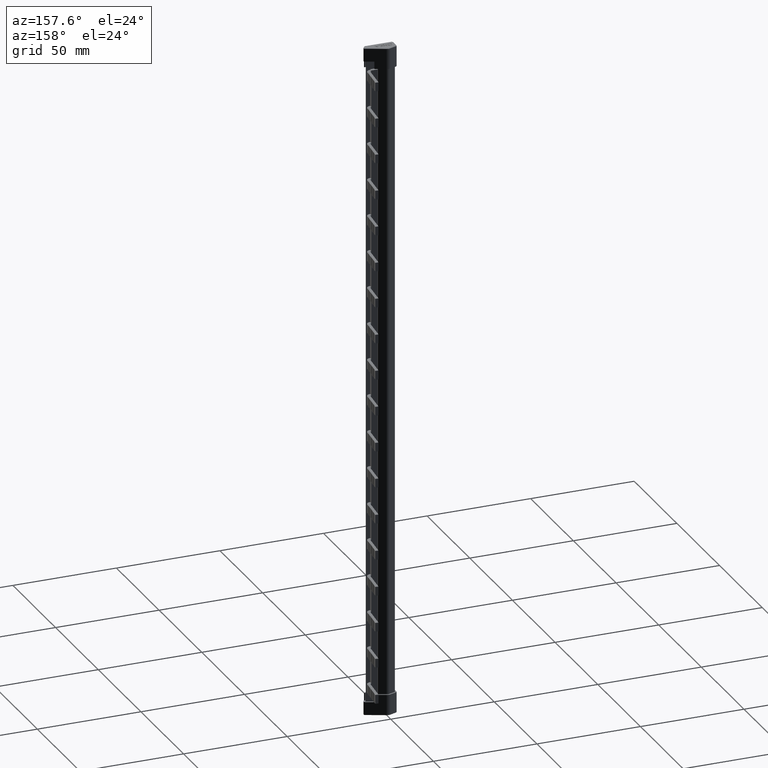
[diagram: clean part render]
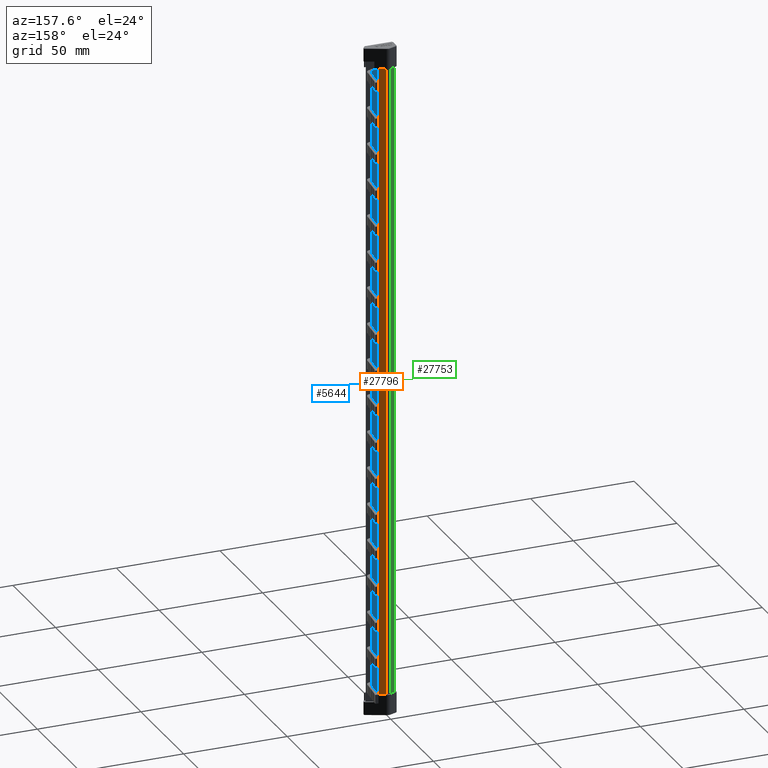
[diagram: same view with three faces highlighted in distinct colors, each labeled with its STEP entity id]
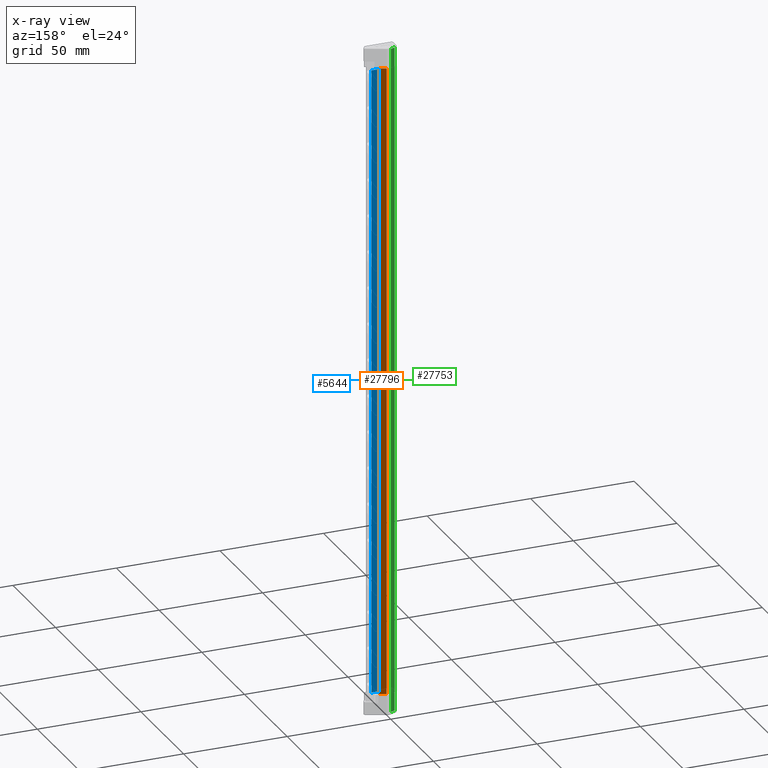
[diagram: x-ray of the same camera — body ghosted, the three highlighted faces saturated]
A machine part, auxiliary view with three faces highlighted in distinct colors.
The next image is the same camera in x-ray (body ghosted, the three faces saturated) — at least one of them is partly hidden behind the body in this view.
Their STEP definitions:

[orange] entity #27796 — the highlighted planar face has unit normal (-0.4021, -0.9156, 0).
#3870 = EDGE_CURVE ( 'NONE', #17492, #17494, #10264, .T. ) ;
#3875 = EDGE_CURVE ( 'NONE', #17480, #17516, #10255, .T. ) ;
#6617 = VECTOR ( 'NONE', #15357, 1000.000000000000000 ) ;
#6662 = VECTOR ( 'NONE', #15415, 1000.000000000000000 ) ;
#6684 = VECTOR ( 'NONE', #15501, 1000.000000000000000 ) ;
#6685 = VECTOR ( 'NONE', #15468, 1000.000000000000000 ) ;
#6749 = AXIS2_PLACEMENT_3D ( 'NONE', #19731, #19726, #19732 ) ;
#9329 = CARTESIAN_POINT ( 'NONE',  ( 4.041246672141031800, 5.040290789016191700, 209.9000000000000100 ) ) ;
#9334 = CARTESIAN_POINT ( 'NONE',  ( 4.023631280490517900, 5.048082172487888800, -104.9999999999999600 ) ) ;
#9338 = CARTESIAN_POINT ( 'NONE',  ( 4.041246672138928600, 5.040290789017118000, -95.90000000000002000 ) ) ;
#9349 = CARTESIAN_POINT ( 'NONE',  ( 4.041246672134450400, 5.040290789019118200, -104.9999999999999400 ) ) ;
#9356 = CARTESIAN_POINT ( 'NONE',  ( 7.198979361395242200, 3.653583530320347900, 209.9000000000000100 ) ) ;
#9394 = CARTESIAN_POINT ( 'NONE',  ( 7.198978880136806400, 3.653583741663305700, -95.89999999999999100 ) ) ;
#9399 = CARTESIAN_POINT ( 'NONE',  ( 4.023631280490503700, 5.048082172487894100, 219.0000000000000000 ) ) ;
#9401 = CARTESIAN_POINT ( 'NONE',  ( 4.041246672138783000, 5.040290789017197100, 219.0000000000000000 ) ) ;
#10225 = DIRECTION ( 'NONE',  ( 0.9156028725539414600, -0.4020837969515445600, 0.0000000000000000000 ) ) ;
#10227 = CARTESIAN_POINT ( 'NONE',  ( 7.198979567648849300, 3.653583439744773700, 209.9000000000000100 ) ) ;
#10231 = CARTESIAN_POINT ( 'NONE',  ( 4.041246672138768800, 5.040290789017190900, -95.89999999999999100 ) ) ;
#10255 = LINE ( 'NONE', #10231, #28781 ) ;
#10264 = LINE ( 'NONE', #10227, #28780 ) ;
#10265 = DIRECTION ( 'NONE',  ( -0.9156028725539414600, 0.4020837969515445600, 0.0000000000000000000 ) ) ;
#11906 = ORIENTED_EDGE ( 'NONE', *, *, #3875, .F. ) ;
#11909 = ORIENTED_EDGE ( 'NONE', *, *, #3870, .F. ) ;
#11910 = ORIENTED_EDGE ( 'NONE', *, *, #27717, .F. ) ;
#11917 = ORIENTED_EDGE ( 'NONE', *, *, #27691, .F. ) ;
#11924 = ORIENTED_EDGE ( 'NONE', *, *, #27701, .F. ) ;
#11926 = ORIENTED_EDGE ( 'NONE', *, *, #27595, .F. ) ;
#11936 = ORIENTED_EDGE ( 'NONE', *, *, #27698, .F. ) ;
#12021 = ORIENTED_EDGE ( 'NONE', *, *, #27666, .F. ) ;
#15026 = CARTESIAN_POINT ( 'NONE',  ( 4.029530657293334700, 5.045547550304820400, -104.9999999999999400 ) ) ;
#15028 = CARTESIAN_POINT ( 'NONE',  ( 4.041246672134450400, 5.040290789019118200, -104.9999999999999400 ) ) ;
#15035 = CARTESIAN_POINT ( 'NONE',  ( 4.023631280490517900, 5.048082172487888800, -104.9999999999999600 ) ) ;
#15038 = CARTESIAN_POINT ( 'NONE',  ( 4.035395738251794200, 5.042934822567399800, -104.9999999999999400 ) ) ;
#15350 = LINE ( 'NONE', #15386, #6617 ) ;
#15357 = DIRECTION ( 'NONE',  ( 3.755450426763440500E-019, 8.551702964775421900E-019, 1.000000000000000000 ) ) ;
#15386 = CARTESIAN_POINT ( 'NONE',  ( 4.041246672134435300, 5.040290789019083600, 219.0000000000000000 ) ) ;
#15403 = CARTESIAN_POINT ( 'NONE',  ( 4.041246672138774100, 5.040290789017178400, 219.0000000000000000 ) ) ;
#15415 = DIRECTION ( 'NONE',  ( 3.755450426763440500E-019, 8.551702964775421900E-019, 1.000000000000000000 ) ) ;
#15416 = LINE ( 'NONE', #15403, #6662 ) ;
#15450 = CARTESIAN_POINT ( 'NONE',  ( 4.041246672138783000, 5.040290789017197100, 219.0000000000000000 ) ) ;
#15452 = CARTESIAN_POINT ( 'NONE',  ( 4.035395738254680800, 5.042934822566112800, 219.0000000000000000 ) ) ;
#15468 = DIRECTION ( 'NONE',  ( -3.755450426763440500E-019, -8.551702964775421900E-019, -1.000000000000000000 ) ) ;
#15476 = CARTESIAN_POINT ( 'NONE',  ( 4.023631280490503700, 5.048082172487894100, 219.0000000000000000 ) ) ;
#15479 = CARTESIAN_POINT ( 'NONE',  ( 4.023610795916428500, 5.048035522336186400, 219.0000000000000000 ) ) ;
#15482 = LINE ( 'NONE', #15479, #6685 ) ;
#15483 = CARTESIAN_POINT ( 'NONE',  ( 4.029530657294781500, 5.045547550304184400, 219.0000000000000000 ) ) ;
#15501 = DIRECTION ( 'NONE',  ( 3.755450426763440500E-019, 8.551702964775421900E-019, 1.000000000000000000 ) ) ;
#15516 = CARTESIAN_POINT ( 'NONE',  ( 7.198979017639225700, 3.653583681279625000, 219.0000000000000000 ) ) ;
#15524 = LINE ( 'NONE', #15516, #6684 ) ;
#17428 = EDGE_LOOP ( 'NONE', ( #11909, #11910, #11906, #12021, #11926, #11936, #11924, #11917 ) ) ;
#17476 = VERTEX_POINT ( 'NONE', #9349 ) ;
#17480 = VERTEX_POINT ( 'NONE', #9338 ) ;
#17492 = VERTEX_POINT ( 'NONE', #9356 ) ;
#17494 = VERTEX_POINT ( 'NONE', #9329 ) ;
#17496 = VERTEX_POINT ( 'NONE', #9334 ) ;
#17503 = VERTEX_POINT ( 'NONE', #9401 ) ;
#17516 = VERTEX_POINT ( 'NONE', #9394 ) ;
#17519 = VERTEX_POINT ( 'NONE', #9399 ) ;
#19690 = PLANE ( 'NONE',  #6749 ) ;
#19707 = FACE_OUTER_BOUND ( 'NONE', #17428, .T. ) ;
#19726 = DIRECTION ( 'NONE',  ( -0.4020837969515297400, -0.9156028725539479000, 9.339969566632776300E-019 ) ) ;
#19731 = CARTESIAN_POINT ( 'NONE',  ( 7.198977367610305900, 3.653584405884049900, 219.0000000000000000 ) ) ;
#19732 = DIRECTION ( 'NONE',  ( 0.9156028725539479000, -0.4020837969515297400, 0.0000000000000000000 ) ) ;
#27290 = B_SPLINE_CURVE_WITH_KNOTS ( 'NONE', 3,
 ( #15035, #15026, #15038, #15028 ),
 .UNSPECIFIED., .F., .F.,
 ( 4, 4 ),
 ( 0.0000000000000000000, 1.000000000000000000 ),
 .UNSPECIFIED. ) ;
#27297 = B_SPLINE_CURVE_WITH_KNOTS ( 'NONE', 3,
 ( #15450, #15452, #15483, #15476 ),
 .UNSPECIFIED., .F., .F.,
 ( 4, 4 ),
 ( 0.0000000000000000000, 1.000000000000000000 ),
 .UNSPECIFIED. ) ;
#27595 = EDGE_CURVE ( 'NONE', #17496, #17476, #27290, .T. ) ;
#27666 = EDGE_CURVE ( 'NONE', #17476, #17480, #15350, .T. ) ;
#27691 = EDGE_CURVE ( 'NONE', #17494, #17503, #15416, .T. ) ;
#27698 = EDGE_CURVE ( 'NONE', #17519, #17496, #15482, .T. ) ;
#27701 = EDGE_CURVE ( 'NONE', #17503, #17519, #27297, .T. ) ;
#27717 = EDGE_CURVE ( 'NONE', #17516, #17492, #15524, .T. ) ;
#27796 = ADVANCED_FACE ( 'NONE', ( #19707 ), #19690, .F. ) ;
#28780 = VECTOR ( 'NONE', #10265, 1000.000000000000000 ) ;
#28781 = VECTOR ( 'NONE', #10225, 1000.000000000000100 ) ;

[blue] entity #5644 — the highlighted planar face has unit normal (-0, -1, 0).
#459 = CARTESIAN_POINT ( 'NONE',  ( 0.5999928904455442700, 2.600000585347644700, 207.9000000000000100 ) ) ;
#460 = DIRECTION ( 'NONE',  ( 0.0000000000000000000, -2.593268936129210100E-023, -1.000000000000000000 ) ) ;
#494 = FACE_OUTER_BOUND ( 'NONE', #17430, .T. ) ;
#496 = PLANE ( 'NONE',  #29231 ) ;
#498 = DIRECTION ( 'NONE',  ( -4.379063324521068500E-047, -1.000000000000000000, 2.593268936129210100E-023 ) ) ;
#5644 = ADVANCED_FACE ( 'NONE', ( #494 ), #496, .F. ) ;
#6426 = VECTOR ( 'NONE', #14851, 1000.000000000000000 ) ;
#6447 = VECTOR ( 'NONE', #15812, 1000.000000000000000 ) ;
#7750 = CARTESIAN_POINT ( 'NONE',  ( 10.37430495582721900, 2.600000585347644700, 207.9000000000000100 ) ) ;
#7753 = DIRECTION ( 'NONE',  ( -0.0000000000000000000, 2.593268936129210100E-023, 1.000000000000000000 ) ) ;
#7760 = LINE ( 'NONE', #7750, #25069 ) ;
#8302 = CARTESIAN_POINT ( 'NONE',  ( 10.37430495582721900, 2.600000585347646900, -95.00000000000001400 ) ) ;
#8306 = CARTESIAN_POINT ( 'NONE',  ( 6.977833211811479000, 2.600000585347644700, 209.0000000000000300 ) ) ;
#8368 = CARTESIAN_POINT ( 'NONE',  ( 10.37430495582727200, 2.600000585347646900, 209.0000000000000000 ) ) ;
#8439 = CARTESIAN_POINT ( 'NONE',  ( 6.977833211811479000, 2.600000585347644700, -95.00000000000000000 ) ) ;
#8796 = CARTESIAN_POINT ( 'NONE',  ( 0.5999928904455442700, 2.600000585347644700, -95.00000000000000000 ) ) ;
#8802 = LINE ( 'NONE', #8796, #25048 ) ;
#8804 = DIRECTION ( 'NONE',  ( 1.000000000000000000, -4.379063324521068500E-047, 1.135608888882319300E-069 ) ) ;
#11491 = ORIENTED_EDGE ( 'NONE', *, *, #21884, .F. ) ;
#11551 = ORIENTED_EDGE ( 'NONE', *, *, #21918, .F. ) ;
#11561 = ORIENTED_EDGE ( 'NONE', *, *, #27532, .F. ) ;
#11580 = ORIENTED_EDGE ( 'NONE', *, *, #27512, .F. ) ;
#14788 = LINE ( 'NONE', #14797, #6426 ) ;
#14797 = CARTESIAN_POINT ( 'NONE',  ( 6.977833211811479000, 2.600000585347644700, 219.0000000000000000 ) ) ;
#14851 = DIRECTION ( 'NONE',  ( -1.174935236590071000E-018, -5.041208906165829300E-019, -1.000000000000000000 ) ) ;
#15808 = CARTESIAN_POINT ( 'NONE',  ( 0.5999928904455442700, 2.600000585347644700, 209.0000000000000000 ) ) ;
#15811 = LINE ( 'NONE', #15808, #6447 ) ;
#15812 = DIRECTION ( 'NONE',  ( -1.000000000000000000, 4.379063324521068500E-047, -1.135608888882319300E-069 ) ) ;
#17430 = EDGE_LOOP ( 'NONE', ( #11551, #11491, #11561, #11580 ) ) ;
#18186 = VERTEX_POINT ( 'NONE', #8302 ) ;
#18195 = VERTEX_POINT ( 'NONE', #8306 ) ;
#18204 = VERTEX_POINT ( 'NONE', #8368 ) ;
#18276 = VERTEX_POINT ( 'NONE', #8439 ) ;
#21884 = EDGE_CURVE ( 'NONE', #18276, #18186, #8802, .T. ) ;
#21918 = EDGE_CURVE ( 'NONE', #18186, #18204, #7760, .T. ) ;
#25048 = VECTOR ( 'NONE', #8804, 1000.000000000000000 ) ;
#25069 = VECTOR ( 'NONE', #7753, 1000.000000000000000 ) ;
#27512 = EDGE_CURVE ( 'NONE', #18204, #18195, #15811, .T. ) ;
#27532 = EDGE_CURVE ( 'NONE', #18195, #18276, #14788, .T. ) ;
#29231 = AXIS2_PLACEMENT_3D ( 'NONE', #459, #498, #460 ) ;

[green] entity #27753 — the highlighted planar face has unit normal (-0.3358, 0.9419, 0).
#6554 = VECTOR ( 'NONE', #15126, 1000.000000000000000 ) ;
#6597 = VECTOR ( 'NONE', #15008, 1000.000000000000000 ) ;
#6605 = VECTOR ( 'NONE', #15019, 1000.000000000000000 ) ;
#6636 = VECTOR ( 'NONE', #15306, 1000.000000000000100 ) ;
#6670 = VECTOR ( 'NONE', #15358, 1000.000000000000100 ) ;
#6733 = VECTOR ( 'NONE', #15460, 1000.000000000000000 ) ;
#6770 = AXIS2_PLACEMENT_3D ( 'NONE', #15660, #15645, #15689 ) ;
#8393 = CARTESIAN_POINT ( 'NONE',  ( 1.856509959660058500, 4.798316931443742400, -95.90000000000006300 ) ) ;
#8449 = CARTESIAN_POINT ( 'NONE',  ( 1.856509959617361100, 4.798316931428618500, 209.9000000000000100 ) ) ;
#9309 = CARTESIAN_POINT ( 'NONE',  ( 1.856509959753711600, 4.798316931477153900, -104.9999999999999300 ) ) ;
#9317 = CARTESIAN_POINT ( 'NONE',  ( 1.856509959546275100, 4.798316931403195300, 219.0000000000000000 ) ) ;
#9320 = CARTESIAN_POINT ( 'NONE',  ( -0.2554380165529573400, 4.045338471695514700, -104.9999999999999600 ) ) ;
#9368 = CARTESIAN_POINT ( 'NONE',  ( -0.2554380165529573400, 4.045338471695514700, 219.0000000000000000 ) ) ;
#11739 = ORIENTED_EDGE ( 'NONE', *, *, #27597, .T. ) ;
#11806 = ORIENTED_EDGE ( 'NONE', *, *, #27669, .T. ) ;
#11845 = ORIENTED_EDGE ( 'NONE', *, *, #27621, .T. ) ;
#11857 = ORIENTED_EDGE ( 'NONE', *, *, #27657, .T. ) ;
#11858 = ORIENTED_EDGE ( 'NONE', *, *, #27696, .F. ) ;
#11866 = ORIENTED_EDGE ( 'NONE', *, *, #27591, .T. ) ;
#15003 = LINE ( 'NONE', #15030, #6597 ) ;
#15005 = CARTESIAN_POINT ( 'NONE',  ( 1.856509959660052500, 4.798316931443761000, 199.0000000000000000 ) ) ;
#15008 = DIRECTION ( 'NONE',  ( 4.307407246271474200E-027, -1.216194766109910600E-026, -1.000000000000000000 ) ) ;
#15019 = DIRECTION ( 'NONE',  ( -0.0000000000000000000, -0.0000000000000000000, -1.000000000000000000 ) ) ;
#15030 = CARTESIAN_POINT ( 'NONE',  ( 1.856509959660069800, 4.798316931443708600, -99.50000000000000000 ) ) ;
#15046 = LINE ( 'NONE', #15005, #6605 ) ;
#15108 = LINE ( 'NONE', #15123, #6554 ) ;
#15123 = CARTESIAN_POINT ( 'NONE',  ( 1.856509959546209100, 4.798316931403382700, 213.5000000000000600 ) ) ;
#15126 = DIRECTION ( 'NONE',  ( -4.307407246271474200E-027, 1.216194766109910600E-026, -1.000000000000000000 ) ) ;
#15306 = DIRECTION ( 'NONE',  ( -0.9419238198400018400, -0.3358266183881493700, 0.0000000000000000000 ) ) ;
#15325 = CARTESIAN_POINT ( 'NONE',  ( 1.856509959660052100, 4.798316931443761000, -104.9999999999999300 ) ) ;
#15346 = LINE ( 'NONE', #15325, #6636 ) ;
#15352 = CARTESIAN_POINT ( 'NONE',  ( 1.856509959660052100, 4.798316931443761000, 219.0000000000000000 ) ) ;
#15358 = DIRECTION ( 'NONE',  ( 0.9419238198400018400, 0.3358266183881493700, -0.0000000000000000000 ) ) ;
#15364 = LINE ( 'NONE', #15352, #6670 ) ;
#15448 = CARTESIAN_POINT ( 'NONE',  ( -0.2554380165529477900, 4.045338471695521000, 219.0000000000000000 ) ) ;
#15460 = DIRECTION ( 'NONE',  ( -0.0000000000000000000, -0.0000000000000000000, -1.000000000000000000 ) ) ;
#15489 = LINE ( 'NONE', #15448, #6733 ) ;
#15645 = DIRECTION ( 'NONE',  ( -0.3358266183881493700, 0.9419238198400018400, 0.0000000000000000000 ) ) ;
#15660 = CARTESIAN_POINT ( 'NONE',  ( 1.856509959660052100, 4.798316931443761000, 199.0000000000000000 ) ) ;
#15669 = PLANE ( 'NONE',  #6770 ) ;
#15688 = FACE_OUTER_BOUND ( 'NONE', #17442, .T. ) ;
#15689 = DIRECTION ( 'NONE',  ( -0.9419238198400018400, -0.3358266183881493700, 0.0000000000000000000 ) ) ;
#17442 = EDGE_LOOP ( 'NONE', ( #11806, #11845, #11866, #11739, #11857, #11858 ) ) ;
#17466 = VERTEX_POINT ( 'NONE', #9309 ) ;
#17471 = VERTEX_POINT ( 'NONE', #9317 ) ;
#17485 = VERTEX_POINT ( 'NONE', #9320 ) ;
#17508 = VERTEX_POINT ( 'NONE', #9368 ) ;
#18271 = VERTEX_POINT ( 'NONE', #8449 ) ;
#18318 = VERTEX_POINT ( 'NONE', #8393 ) ;
#27591 = EDGE_CURVE ( 'NONE', #18271, #18318, #15046, .T. ) ;
#27597 = EDGE_CURVE ( 'NONE', #18318, #17466, #15003, .T. ) ;
#27621 = EDGE_CURVE ( 'NONE', #17471, #18271, #15108, .T. ) ;
#27657 = EDGE_CURVE ( 'NONE', #17466, #17485, #15346, .T. ) ;
#27669 = EDGE_CURVE ( 'NONE', #17508, #17471, #15364, .T. ) ;
#27696 = EDGE_CURVE ( 'NONE', #17508, #17485, #15489, .T. ) ;
#27753 = ADVANCED_FACE ( 'NONE', ( #15688 ), #15669, .T. ) ;